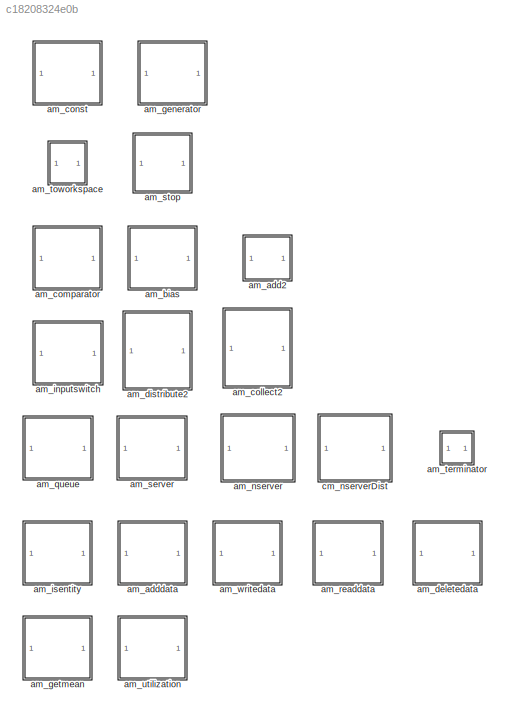
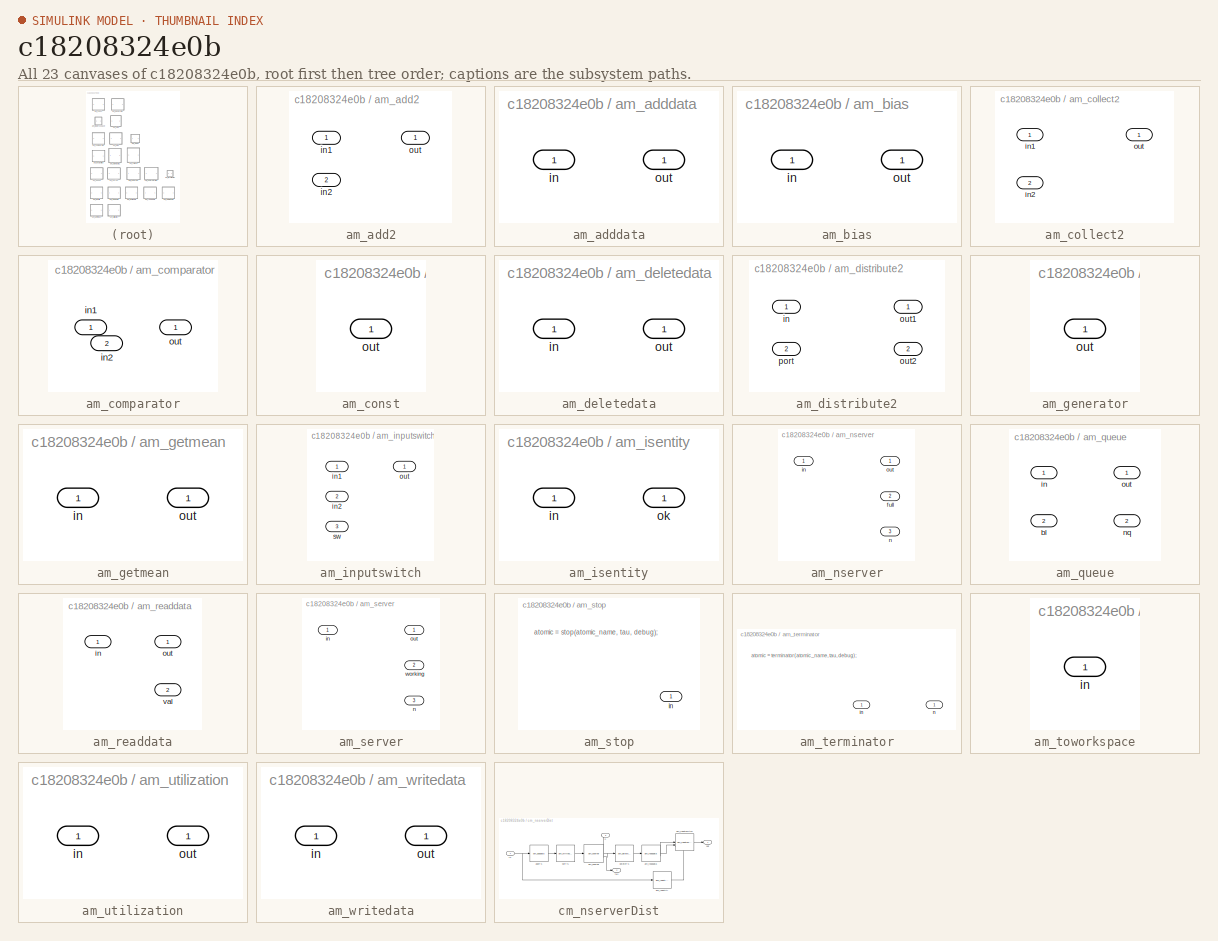
[diagram: thumbnail index - all 23 canvases of the model, root first then tree order]
MODEL slx_c18208324e0b
KIND library
CONFIG AbsTol = auto
CONFIG EnableMultiTasking = off
CONFIG FixedStep = auto
CONFIG MaxStep = auto
CONFIG MinStep = auto
CONFIG RelTol = 1e-3
CONFIG SampleTimeConstraint = Unconstrained
CONFIG SolverName = VariableStepAuto
CONFIG StartTime = 0.0
CONFIG StopTime = 10.0
BLOCK [SubSystem] am_add2
  ShowPortLabels = none
  TreatAsAtomicUnit = on
BLOCK [Inport] am_add2/in1
BLOCK [Inport] am_add2/in2
  Port = 2
BLOCK [Outport] am_add2/out
BLOCK [SubSystem] am_adddata
  ShowPortLabels = none
  TreatAsAtomicUnit = on
BLOCK [Inport] am_adddata/in
BLOCK [Outport] am_adddata/out
BLOCK [SubSystem] am_bias
  ShowPortLabels = none
  TreatAsAtomicUnit = on
BLOCK [Inport] am_bias/in
BLOCK [Outport] am_bias/out
BLOCK [SubSystem] am_collect2
  ShowPortLabels = none
  TreatAsAtomicUnit = on
BLOCK [Inport] am_collect2/in1
BLOCK [Inport] am_collect2/in2
  Port = 2
BLOCK [Outport] am_collect2/out
BLOCK [SubSystem] am_comparator
  TreatAsAtomicUnit = on
BLOCK [Inport] am_comparator/in1
BLOCK [Inport] am_comparator/in2
  Port = 2
BLOCK [Outport] am_comparator/out
BLOCK [SubSystem] am_const
  ShowPortLabels = none
  TreatAsAtomicUnit = on
BLOCK [Outport] am_const/out
BLOCK [SubSystem] am_deletedata
  ShowPortLabels = none
  TreatAsAtomicUnit = on
BLOCK [Inport] am_deletedata/in
BLOCK [Outport] am_deletedata/out
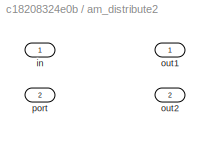
BLOCK [SubSystem] am_distribute2
  ShowPortLabels = none
  TreatAsAtomicUnit = on
BLOCK [Inport] am_distribute2/in
BLOCK [Outport] am_distribute2/out1
BLOCK [Outport] am_distribute2/out2
  Port = 2
BLOCK [Inport] am_distribute2/port
  Port = 2
BLOCK [SubSystem] am_generator
  ShowPortLabels = none
  TreatAsAtomicUnit = on
BLOCK [Outport] am_generator/out
BLOCK [SubSystem] am_getmean
  ShowPortLabels = none
  TreatAsAtomicUnit = on
BLOCK [Inport] am_getmean/in
BLOCK [Outport] am_getmean/out
BLOCK [SubSystem] am_inputswitch
  PortSchema = {"entries":[{"content":{"sides":[{"content":{"connectorIds":["In1","In2"]},"type":"ConnectorPlacement.EquallySpacedRectSide","uuid":"a242b9b3-c1e3-46c4-b856-00ac7f2ff705"},{"content":{"connectorIds":["Out1"],"side":"RIGHT"},"type":"ConnectorPlacement.EquallySpacedRectSide","uuid":"cb82deda-416f-4da7-8475-a8c2a30fa742"},{"content":{"side":"TOP"},"type":"ConnectorPlacement.EquallySpacedRectSide","uu...<+377ch>
  ShowPortLabels = none
  TreatAsAtomicUnit = on
BLOCK [Inport] am_inputswitch/in1
BLOCK [Inport] am_inputswitch/in2
  Port = 2
BLOCK [Outport] am_inputswitch/out
BLOCK [Inport] am_inputswitch/sw
  Port = 3
BLOCK [SubSystem] am_isentity
  ShowPortLabels = none
  TreatAsAtomicUnit = on
BLOCK [Inport] am_isentity/in
BLOCK [Outport] am_isentity/ok
BLOCK [SubSystem] am_nserver
  PortSchema = {"entries":[{"content":{"sides":[{"content":{"connectorIds":["In1"]},"type":"ConnectorPlacement.EquallySpacedRectSide","uuid":"5b183f90-fa7c-445f-8fcc-24f596b19ad3"},{"content":{"connectorIds":["Out1","Out2"],"side":"RIGHT"},"type":"ConnectorPlacement.EquallySpacedRectSide","uuid":"38178c13-d678-4577-a6b9-5280f6db2632"},{"content":{"connectorIds":["Out3"],"side":"TOP"},"type":"ConnectorPlacement.E...<+253ch>
  ShowPortLabels = none
  TreatAsAtomicUnit = on
BLOCK [Outport] am_nserver/full
  Port = 2
BLOCK [Inport] am_nserver/in
BLOCK [Outport] am_nserver/n
  Port = 3
BLOCK [Outport] am_nserver/out
BLOCK [SubSystem] am_queue
  PortSchema = {"entries":[{"content":{"sides":[{"content":{"connectorIds":["In1","In2"]},"type":"ConnectorPlacement.EquallySpacedRectSide","uuid":"a540ed89-9b5d-441d-ada7-41a21a0b2235"},{"content":{"connectorIds":["Out1"],"side":"RIGHT"},"type":"ConnectorPlacement.EquallySpacedRectSide","uuid":"9c4633e5-6641-4191-bf3a-c71013e8ac94"},{"content":{"connectorIds":["Out2"],"side":"TOP"},"type":"ConnectorPlacement.Eq...<+252ch>
  ShowPortLabels = none
  TreatAsAtomicUnit = on
BLOCK [Inport] am_queue/bl
  Port = 2
BLOCK [Inport] am_queue/in
BLOCK [Outport] am_queue/nq
  Port = 2
BLOCK [Outport] am_queue/out
BLOCK [SubSystem] am_readdata
  PortSchema = {"entries":[{"content":{"sides":[{"content":{"connectorIds":["In1"]},"type":"ConnectorPlacement.EquallySpacedRectSide","uuid":"af4f6e7f-4af3-4de3-ab26-fba0b0c6ecc4"},{"content":{"connectorIds":["Out1"],"side":"RIGHT"},"type":"ConnectorPlacement.EquallySpacedRectSide","uuid":"ccdbf49e-e606-4b9c-9d6c-043b910468ef"},{"content":{"connectorIds":["Out2"],"side":"TOP"},"type":"ConnectorPlacement.EquallyS...<+372ch>
  ShowPortLabels = none
  TreatAsAtomicUnit = on
BLOCK [Inport] am_readdata/in
BLOCK [Outport] am_readdata/out
BLOCK [Outport] am_readdata/val
  Port = 2
BLOCK [SubSystem] am_server
  PortSchema = {"entries":[{"content":{"sides":[{"content":{"connectorIds":["In1"]},"type":"ConnectorPlacement.EquallySpacedRectSide","uuid":"5b183f90-fa7c-445f-8fcc-24f596b19ad3"},{"content":{"connectorIds":["Out1","Out2"],"side":"RIGHT"},"type":"ConnectorPlacement.EquallySpacedRectSide","uuid":"38178c13-d678-4577-a6b9-5280f6db2632"},{"content":{"connectorIds":["Out3"],"side":"TOP"},"type":"ConnectorPlacement.E...<+253ch>
  ShowPortLabels = none
  TreatAsAtomicUnit = on
BLOCK [Inport] am_server/in
BLOCK [Outport] am_server/n
  Port = 3
BLOCK [Outport] am_server/out
BLOCK [Outport] am_server/working
  Port = 2
BLOCK [SubSystem] am_stop
BLOCK [Inport] am_stop/in
BLOCK [SubSystem] am_terminator
  PortSchema = {"entries":[{"content":{"sides":[{"content":{"connectorIds":["In1"]},"type":"ConnectorPlacement.EquallySpacedRectSide","uuid":"49bb8e9f-90f2-4275-9611-e25e817b13b5"},{"content":{"side":"RIGHT"},"type":"ConnectorPlacement.EquallySpacedRectSide","uuid":"c18d105c-f57d-4a33-ac03-be83593b975c"},{"content":{"connectorIds":["Out1"],"side":"TOP"},"type":"ConnectorPlacement.EquallySpacedRectSide","uuid":"7...<+222ch>
  ShowPortLabels = none
BLOCK [Inport] am_terminator/in
BLOCK [Outport] am_terminator/n
BLOCK [SubSystem] am_toworkspace
  ShowPortLabels = none
  TreatAsAtomicUnit = on
BLOCK [Inport] am_toworkspace/in
BLOCK [SubSystem] am_utilization
  ShowPortLabels = none
  TreatAsAtomicUnit = on
BLOCK [Inport] am_utilization/in
BLOCK [Outport] am_utilization/out
BLOCK [SubSystem] am_writedata
  ShowPortLabels = none
  TreatAsAtomicUnit = on
BLOCK [Inport] am_writedata/in
BLOCK [Outport] am_writedata/out
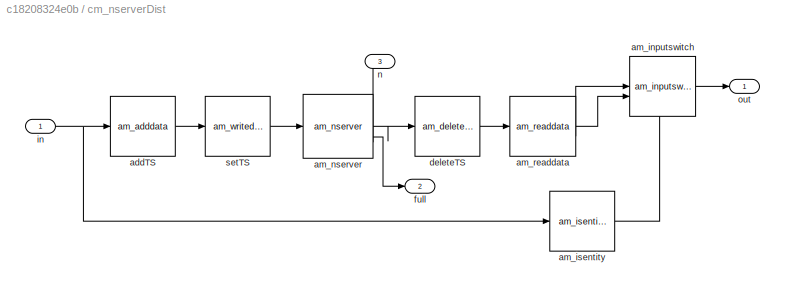
BLOCK [SubSystem] cm_nserverDist
  PortSchema = {"entries":[{"content":{"sides":[{"content":{"connectorIds":["In1"]},"type":"ConnectorPlacement.EquallySpacedRectSide","uuid":"eca6e159-4e27-4729-aa7d-b464d6fdfe1f"},{"content":{"connectorIds":["Out1","Out2"],"side":"RIGHT"},"type":"ConnectorPlacement.EquallySpacedRectSide","uuid":"154720cd-ea47-4284-be2d-6f7191e664f3"},{"content":{"connectorIds":["Out3"],"side":"TOP"},"type":"ConnectorPlacement.E...<+253ch>
  ShowPortLabels = none
BLOCK [Reference] cm_nserverDist/addTS  REF=$bdroot/am_adddata
  SourceBlock = $bdroot/am_adddata
  SourceType = Adddata
BLOCK [Reference] cm_nserverDist/am_inputswitch  REF=$bdroot/am_inputswitch
  SourceBlock = $bdroot/am_inputswitch
  SourceType = Inputswitch
BLOCK [Reference] cm_nserverDist/am_isentity  REF=$bdroot/am_isentity
  SourceBlock = $bdroot/am_isentity
  SourceType = Isentity
BLOCK [Reference] cm_nserverDist/am_nserver  REF=$bdroot/am_nserver
  SourceBlock = $bdroot/am_nserver
  SourceType = Server
BLOCK [Reference] cm_nserverDist/am_readdata  REF=$bdroot/am_readdata
  SourceBlock = $bdroot/am_readdata
  SourceType = Readdata
BLOCK [Reference] cm_nserverDist/deleteTS  REF=$bdroot/am_deletedata
  SourceBlock = $bdroot/am_deletedata
  SourceType = Deletedata
BLOCK [Outport] cm_nserverDist/full
  Port = 2
BLOCK [Inport] cm_nserverDist/in
BLOCK [Outport] cm_nserverDist/n
  Port = 3
BLOCK [Outport] cm_nserverDist/out
  NameLocation = right
BLOCK [Reference] cm_nserverDist/setTS  REF=$bdroot/am_writedata
  SourceBlock = $bdroot/am_writedata
  SourceType = Writedata
ANNOTATION am_stop: atomic = stop(atomic_name, tau, debug);
ANNOTATION am_terminator: atomic = terminator(atomic_name, tau, debug);
LINE cm_nserverDist/addTS:1 -> cm_nserverDist/setTS:1
LINE cm_nserverDist/am_inputswitch:1 -> cm_nserverDist/out:1
LINE cm_nserverDist/am_isentity:1 -> cm_nserverDist/am_inputswitch:3
LINE cm_nserverDist/am_nserver:1 -> cm_nserverDist/deleteTS:1
LINE cm_nserverDist/am_nserver:2 -> cm_nserverDist/full:1
LINE cm_nserverDist/am_nserver:3 -> cm_nserverDist/n:1
LINE cm_nserverDist/am_readdata:1 -> cm_nserverDist/am_inputswitch:2
LINE cm_nserverDist/am_readdata:2 -> cm_nserverDist/am_inputswitch:1
LINE cm_nserverDist/deleteTS:1 -> cm_nserverDist/am_readdata:1
NET cm_nserverDist/in:1 -> cm_nserverDist/addTS:1, cm_nserverDist/am_isentity:1
LINE cm_nserverDist/setTS:1 -> cm_nserverDist/am_nserver:1
note: NET lines group one-source signal fan-out (src -> all destinations, sorted); 1:1 wires keep LINE
